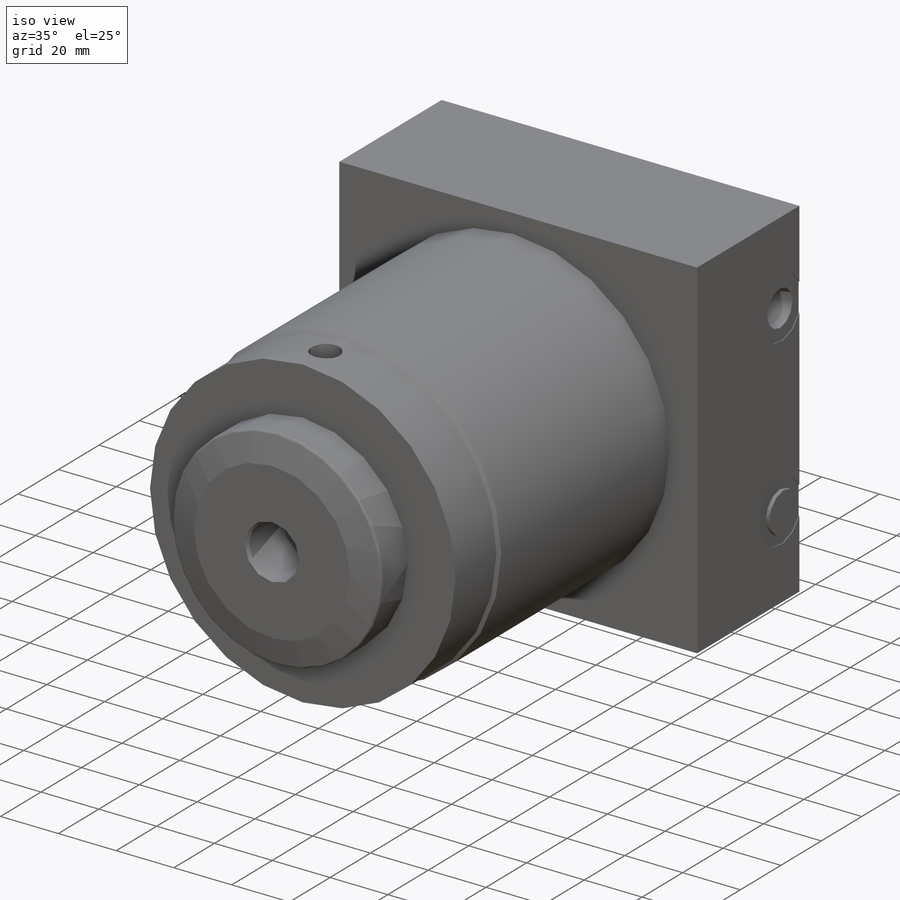
[diagram: iso view]
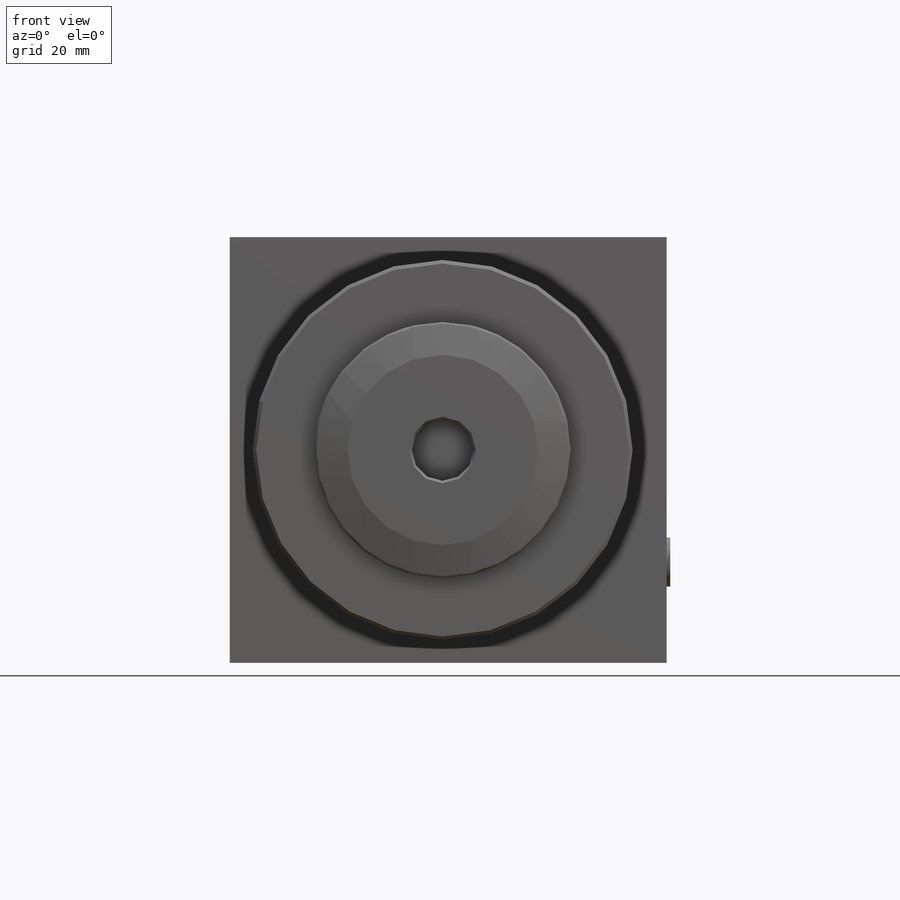
[diagram: front view]
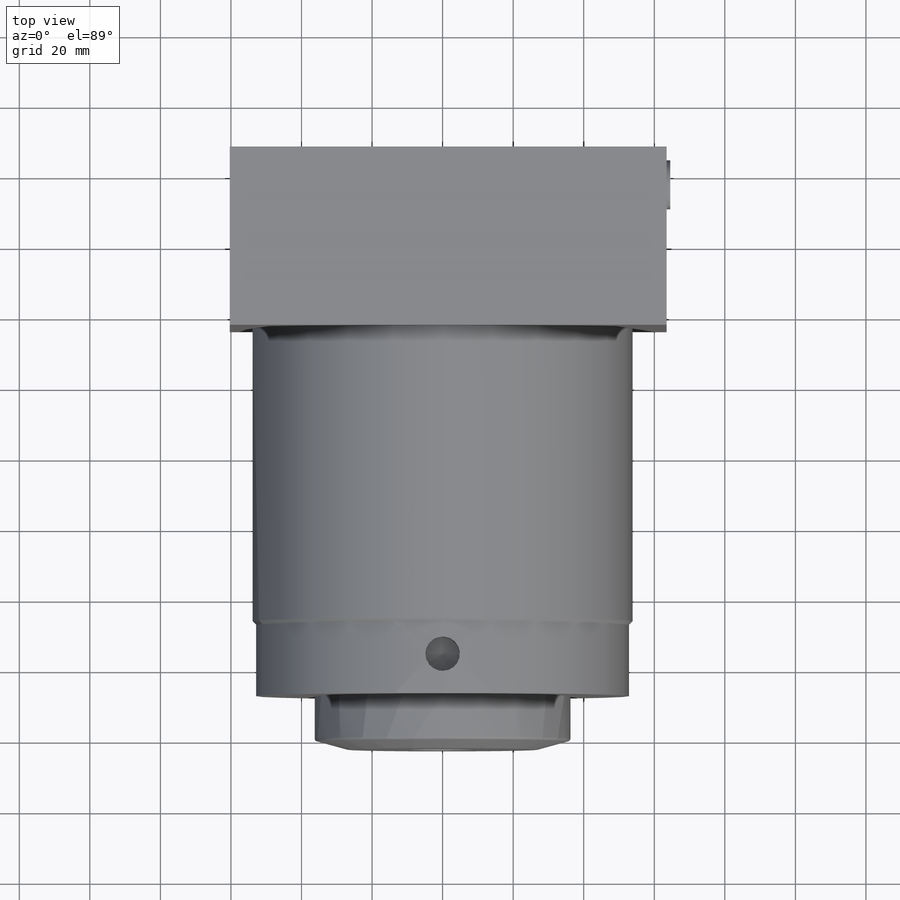
[diagram: top view]
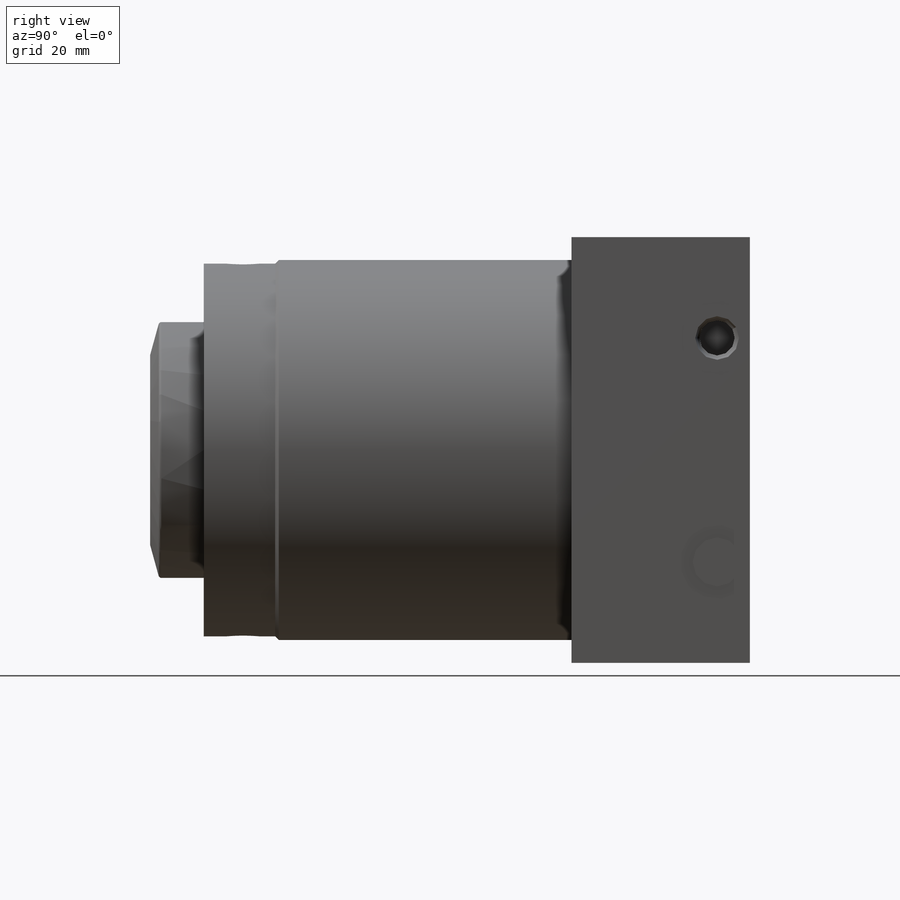
[diagram: right view]
SOLIDWORKS PART (.sldprt)
format: sldprt  version: not decoded by parser v0  size: 504,832 bytes
history: native  units: mm
features: sketch x11, plane x8, cut_revolve x5, extrude x3, cut_extrude x2, material x1, revolve x1, chamfer x1, mirror x1 (+13 scaffold rows collapsed)
feature tree (46):
  scaffold x13  (default folders/planes/origin — collapsed)
  material  "Alloy Steel"
  plane  "Plane1"
  sketch  "Sketch1"  dims[D1=107.696mm]
  extrude  "Extrude1"  Depth=127.7874mm
  plane  "Plane2"
  plane  "Plane12"
  sketch  "Sketch10"  dims[c1.D1=105.6894mm c1.D2=20.2438mm c1.D3=~1.41888mm c2.D3=45.0deg]
  cut_revolve  "Cut-Revolve1"  Angle=360deg
  plane  "Plane15"
  sketch  "Sketch13"  dims[D1=15.1892mm D2=72.517mm]
  revolve  "Revolve1"  Angle=360deg
  plane  "Plane16"
  sketch  "S2D0011"  dims[D1=17.4752mm D2=18.034mm]
  cut_revolve  "Cut-Revolve4"  Angle=360deg
  plane  "Plane17"
  sketch  "Sketch15"  dims[D2=0.8128mm D1=3.175mm D3=53.975mm]
  cut_revolve  "Cut-Revolve5"  Angle=360deg
  plane  "Plane18"
  sketch  "Sketch16"  dims[D1=27.0002mm D2=50.546mm D3=123.825mm D4=60.325mm]
  extrude  "Extrude2"  Depth=120.65mm
  sketch  "Sketch17"  dims[c1.D2=20.955mm c1.D3=20.955mm c1.D1=31.75mm c2.D3=9.271mm]
  cut_extrude  "Cut-Extrude9"  Depth=0.254mm
  sketch  "Sketch18"  dims[c1.D1=20.955mm c1.D3=20.955mm c1.D2=9.271mm c2.D3=31.75mm]
  cut_extrude  "Cut-Extrude10"  Depth=0.254mm
  plane  "Plane21"  Offset=9.271mm
  sketch  "S2D0001"  dims[c1.D1=17.272mm c1.D2=4.9784mm c1.D3=~0.663907mm c2.D3=135.0deg c2.D4=~2.609729mm c3.D4=12.0deg c3.D5=12.3698mm c3.D6=~3.216607mm c3.D7=31.75mm]
  cut_revolve  "Cut-Revolve7"  Angle=360deg
  sketch  "Sketch21"  dims[D1=13.8938mm]
  extrude  "Extrude3"  Depth=1.27mm
  chamfer  "Chamfer1"  Distance=1.1684mm Angle=30deg
  sketch  "Sketch23"  dims[c1.D1=11.1252mm c1.D2=9.779mm c1.D3=7.874mm c1.D4=~125.513495mm c2.D4=59.0deg]
  cut_revolve  "Cut-Revolve8"  Angle=360deg
  mirror  "Mirror1"
decode coverage: 23 of 24 modeling features carry decoded parameters
note: ~ marks probable driven/reference dimensions
note: suppression state not decoded; provenance and decode notes live in map.json
